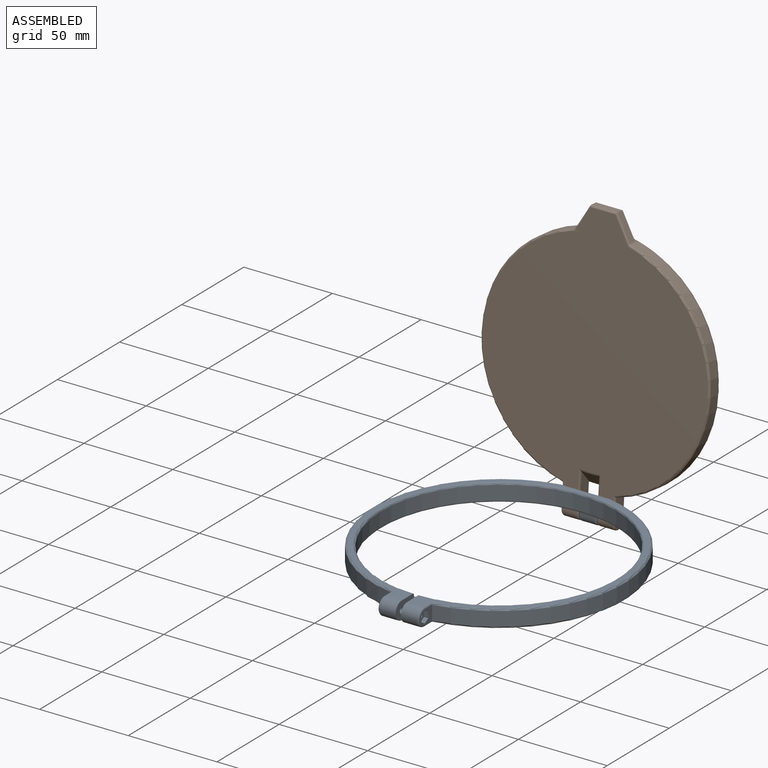
[diagram: assembled view]
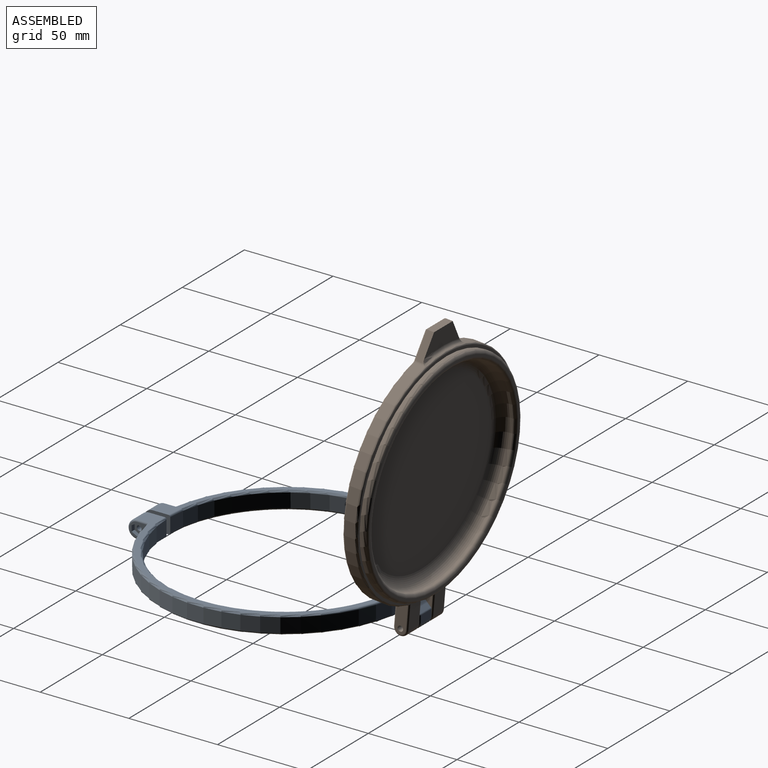
[diagram: assembled view, second angle]
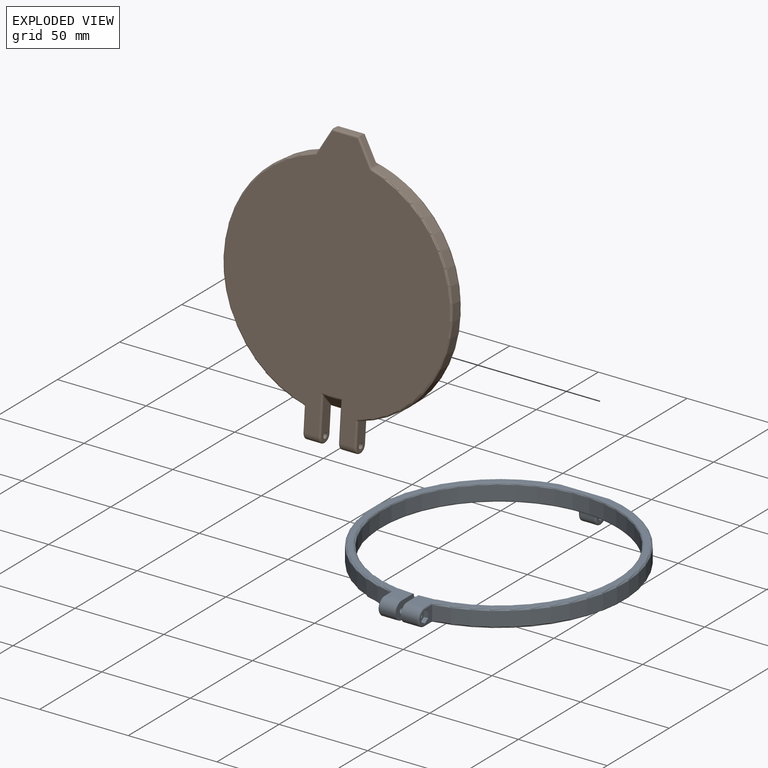
[diagram: exploded view]
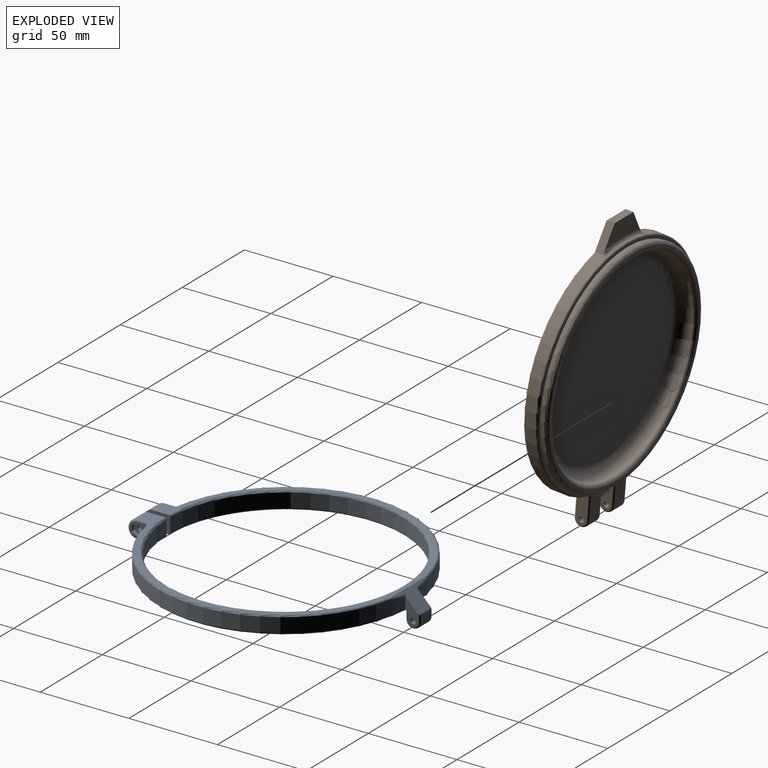
[diagram: exploded view, second angle]
ASSEMBLY  parts=2 mates=2
PART A: 66 faces, bbox 153.9x161x18.9 mm
  f0: plane 4x0.11mm, normal (0,0,1), area 0.1mm2, adj f27,f28,f39
  f1: cylinder r=71.1mm len=141.11mm, axis (0,0,-1), area 1649mm2, adj f10,f23,f48,f59,f61,f64
  f2: cylinder r=1.55mm len=7mm, axis (1,0,0), area 68.2mm2, adj f7,f20
  f3: cylinder r=71.1mm len=141.11mm, axis (0,0,-1), area 1649mm2, adj f9,f22,f44,f52,f54,f62
  f4: cylinder r=66.25mm len=132.5mm, axis (0,0,-1), area 3306.1mm2, adj f7,f8,f50,f51
  f5: plane 147.2x140.2mm, normal (0,0,1), area 1342.7mm2, adj f7,f8,f21,f30,f31,f36,f41,f42
  f6: plane 144.79x140.2mm, normal (0,0,-1), area 1308.3mm2, adj f7,f8,f30,f31,f44,f45,f48,f49
  f7: plane 14.88x10.01mm, normal (-1,0,0), area 130mm2, adj f2,f4,f5,f6,f30,f50,f51
  f8: plane 14.88x10.01mm, normal (1,0,0), area 130mm2, adj f4,f5,f6,f18,f31,f50,f51
  f9: plane 9.94x8mm, normal (-1,0,0), area 45.5mm2, adj f3,f11,f12,f13,f14,f15,f16,f42
  f10: plane 9.94x8mm, normal (1,0,0), area 47.1mm2, adj f1,f19,f46,f47,f49
  f11: plane 2.8x2.4mm, normal (0,0.5,0.87), area 7.8mm2, adj f9,f12,f16,f17
  f12: plane 3.23x2.4mm, normal (0,1,0), area 7.8mm2, adj f9,f11,f13,f17
  f13: plane 2.8x2.4mm, normal (0,0.5,-0.87), area 7.8mm2, adj f9,f12,f14,f17
  f14: plane 2.8x2.4mm, normal (0,-0.5,-0.87), area 7.8mm2, adj f9,f13,f15,f17
  f15: plane 3.23x2.4mm, normal (0,-1,0), area 7.8mm2, adj f9,f14,f16,f17
  f16: plane 2.8x2.4mm, normal (0,-0.5,0.87), area 7.8mm2, adj f9,f11,f15,f17
  f17: plane 6.47x5.6mm, normal (-1,0,0), area 19.6mm2, adj f11,f12,f13,f14,f15,f16,f18
  f18: cylinder r=1.55mm len=7.6mm, axis (1,0,0), area 74mm2, adj f8,f17
  f19: cylinder r=2.85mm len=5.7mm, axis (1,0,0), area 53.7mm2, adj f10,f20
  f20: plane 5.7x5.7mm, normal (1,0,0), area 18mm2, adj f2,f19
  f21: cylinder r=71.1mm len=7.89mm, axis (0,0,-1), area 32.4mm2, adj f5,f27,f36,f41
  f22: plane 13.86x7.18mm, normal (-1,0,0), area 53.7mm2, adj f3,f26,f37,f38,f39,f40,f41,f54
  f23: plane 13.86x7.18mm, normal (1,0,0), area 53.7mm2, adj f1,f26,f32,f33,f34,f35,f36,f61
  f24: plane 8x3.69mm, normal (0,1,0), area 29.5mm2, adj f28,f32,f37,f58
  f25: plane 4x0.11mm, normal (0,0,1), area 0.1mm2, adj f27,f28,f34
  f26: cylinder r=1.55mm len=10mm, axis (-1,0,0), area 97.4mm2, adj f22,f23
  f27: torus R=75.1mm, axis (0,0,1), area 49.6mm2, adj f0,f21,f25,f35,f40
  f28: cylinder r=4mm len=8mm, axis (1,0,0), area 50.3mm2, adj f0,f24,f25,f33,f38
  f29: plane 28.02x9.41mm, normal (0,0.71,-0.71), area 128.4mm2, adj f52,f54,f55,f58,f59,f61
  f30: cylinder r=5mm len=10mm, axis (-1,0,0), area 141.4mm2, adj f5,f6,f7,f47
  f31: cylinder r=5mm len=10mm, axis (-1,0,0), area 141.4mm2, adj f5,f6,f8,f43
  f32: cylinder r=1mm len=3.69mm, axis (0,0,-1), area 5.8mm2, adj f23,f24,f33,f60
  f33: torus R=3mm, axis (1,0,0), area 9mm2, adj f23,f28,f32,f34
  f34: cylinder r=1mm len=1mm, axis (0,-1,0), area 0.2mm2, adj f23,f25,f33,f35
  f35: bspline ~4.96x4.91mm, area 9.2mm2, adj f23,f27,f34,f36
  f36: cylinder r=1mm len=5.1mm, axis (0,0,-1), area 7.2mm2, adj f5,f21,f23,f35,f65
  f37: cylinder r=1mm len=3.69mm, axis (0,0,-1), area 5.8mm2, adj f22,f24,f38,f56
  f38: torus R=3mm, axis (-1,0,0), area 9mm2, adj f22,f28,f37,f39
  f39: cylinder r=1mm len=1mm, axis (0,1,0), area 0.2mm2, adj f0,f22,f38,f40
  f40: bspline ~4.96x4.91mm, area 9.2mm2, adj f22,f27,f39,f41
  f41: cylinder r=1mm len=5.1mm, axis (0,0,-1), area 7.2mm2, adj f5,f21,f22,f40,f63
  f42: cylinder r=1mm len=6.79mm, axis (0,-1,0), area 10mm2, adj f5,f9,f43,f62
  f43: torus R=4mm, axis (1,0,0), area 22.9mm2, adj f9,f31,f42,f45
  f44: torus R=70.1mm, axis (0,0,1), area 309.3mm2, adj f3,f6,f45,f53
  f45: cylinder r=1mm len=6.79mm, axis (0,1,0), area 10mm2, adj f6,f9,f43,f44
  f46: cylinder r=1mm len=6.79mm, axis (0,1,0), area 10mm2, adj f5,f10,f47,f64
  f47: torus R=4mm, axis (1,0,0), area 22.9mm2, adj f10,f30,f46,f49
  f48: torus R=70.1mm, axis (0,0,1), area 309.3mm2, adj f1,f6,f49,f57
  f49: cylinder r=1mm len=6.79mm, axis (0,-1,0), area 10mm2, adj f6,f10,f47,f48
  f50: torus R=67.25mm, axis (0,0,1), area 652.7mm2, adj f4,f6,f7,f8
  f51: torus R=67.25mm, axis (0,0,1), area 652.7mm2, adj f4,f5,f7,f8
  f52: bspline ~10.21x2.01mm, area 7.9mm2, adj f3,f29,f53,f54
  f53: sphere r=1mm, area 0.1mm2, adj f44,f52,f55
  f54: cylinder r=1mm len=8.82mm, axis (0,-0.71,-0.71), area 17mm2, adj f3,f22,f29,f52,f56
  f55: cylinder r=1mm len=28.02mm, axis (-1,0,0), area 22mm2, adj f6,f29,f53,f57
  f56: sphere r=1mm, area 0.8mm2, adj f37,f54,f58
  f57: sphere r=1mm, area 0.1mm2, adj f48,f55,f59
  f58: cylinder r=1mm len=8mm, axis (-1,0,0), area 6.3mm2, adj f24,f29,f56,f60
  f59: bspline ~10.21x2.01mm, area 7.9mm2, adj f1,f29,f57,f61
  f60: sphere r=1mm, area 1mm2, adj f32,f58,f61
  f61: cylinder r=1mm len=8.82mm, axis (0,0.71,0.71), area 17mm2, adj f1,f23,f29,f59,f60
  f62: torus R=70.1mm, axis (0,0,1), area 324.6mm2, adj f3,f5,f42,f63
  f63: cylinder r=1mm len=2mm, axis (0,1,0), area 1.6mm2, adj f5,f22,f41,f62
  f64: torus R=70.1mm, axis (0,0,1), area 324.6mm2, adj f1,f5,f46,f65
  f65: cylinder r=1mm len=2mm, axis (0,-1,0), area 1.6mm2, adj f5,f23,f36,f64
PART B: 48 faces, bbox 139.7x156.9x15.4 mm
  f0: cylinder r=64.5mm len=125.13mm, axis (0,0,-1), area 1025.9mm2, adj f13,f29,f37,f43
  f1: cylinder r=64.5mm len=125.13mm, axis (0,0,-1), area 1025.9mm2, adj f12,f34,f37,f41
  f2: plane 139.5x127mm, normal (0,0,1), area 728.6mm2, adj f4,f17,f18,f24,f27,f35,f37,f39
  f3: plane 151.5x127mm, normal (0,0,-1), area 13030.6mm2, adj f17,f18,f20,f21,f23,f28,f29,f30
  f4: cylinder r=62.15mm len=124.3mm, axis (0,0,-1), area 781mm2, adj f2,f26,f46
  f5: plane 120.3x120.3mm, normal (0,0,1), area 374.8mm2, adj f45,f46
  f6: plane 100.3x100.3mm, normal (0,0,1), area 7901.2mm2, adj f47
  f7: plane 13.23x7.67mm, normal (-0.87,0.5,0), area 61.1mm2, adj f8,f10,f28,f42,f43
  f8: plane 15x4mm, normal (0,1,0), area 60mm2, adj f7,f9,f10,f30
  f9: plane 13.23x7.67mm, normal (0.87,0.5,0), area 61.1mm2, adj f8,f10,f32,f41,f42
  f10: plane 28.31x11.52mm, normal (0,0,1), area 220.7mm2, adj f7,f8,f9,f42
  f11: plane 23.76x6.03mm, normal (-1,0,0), area 112.9mm2, adj f16,f19,f20,f22,f24
  f12: plane 16.27x6mm, normal (1,0,0), area 86.2mm2, adj f1,f16,f36,f38,f39
  f13: plane 16.27x6mm, normal (-1,0,0), area 86.2mm2, adj f0,f15,f31,f33,f35
  f14: plane 23.76x6.03mm, normal (1,0,0), area 112.9mm2, adj f15,f19,f23,f25,f27
  f15: cylinder r=1.55mm len=9.95mm, axis (1,0,0), area 96.9mm2, adj f13,f14
  f16: cylinder r=1.55mm len=9.95mm, axis (1,0,0), area 96.9mm2, adj f11,f12
  f17: cylinder r=4mm len=8mm, axis (-1,0,0), area 99.9mm2, adj f2,f3,f22,f38
  f18: cylinder r=4mm len=8mm, axis (-1,0,0), area 99.9mm2, adj f2,f3,f25,f33
  f19: cone r=64.5mm half-angle=45deg, axis (0,0,1), area 101.4mm2, adj f11,f14,f20,f21,f23,f24,f26,f27
  f20: cylinder r=1mm len=22.25mm, axis (0,1,0), area 33.7mm2, adj f3,f11,f19,f21,f22
  f21: torus R=54.09mm, axis (0,0,1), area 9mm2, adj f3,f19,f20,f23
  f22: torus R=3mm, axis (1,0,0), area 17.9mm2, adj f11,f17,f20,f24
  f23: cylinder r=1mm len=22.25mm, axis (0,-1,0), area 33.7mm2, adj f3,f14,f19,f21,f25
  f24: cylinder r=1mm len=14.71mm, axis (0,-1,0), area 22.5mm2, adj f2,f11,f19,f22,f26
  f25: torus R=3mm, axis (1,0,0), area 17.9mm2, adj f14,f18,f23,f27
  f26: torus R=61.15mm, axis (0,0,1), area 7.7mm2, adj f4,f19,f24,f27
  f27: cylinder r=1mm len=14.71mm, axis (0,1,0), area 22.5mm2, adj f2,f14,f19,f25,f26
  f28: cylinder r=1mm len=14.77mm, axis (-0.5,-0.87,0), area 24.4mm2, adj f3,f7,f30,f44
  f29: torus R=63.5mm, axis (0,0,1), area 268.7mm2, adj f0,f3,f31,f44
  f30: cylinder r=1mm len=15mm, axis (-1,0,0), area 22.7mm2, adj f3,f8,f28,f32
  f31: cylinder r=1mm len=14.06mm, axis (0,1,0), area 21.5mm2, adj f3,f13,f29,f33
  f32: cylinder r=1mm len=14.77mm, axis (-0.5,0.87,0), area 24.4mm2, adj f3,f9,f30,f40
  f33: torus R=3mm, axis (-1,0,0), area 17.9mm2, adj f13,f18,f31,f35
  f34: torus R=63.5mm, axis (0,0,1), area 268.7mm2, adj f1,f3,f36,f40
  f35: cylinder r=1mm len=14.06mm, axis (0,-1,0), area 21.5mm2, adj f2,f13,f33,f37
  f36: cylinder r=1mm len=14.06mm, axis (0,-1,0), area 21.5mm2, adj f3,f12,f34,f38
  f37: torus R=63.5mm, axis (0,0,1), area 587mm2, adj f0,f1,f2,f35,f39,f42
  f38: torus R=3mm, axis (-1,0,0), area 17.9mm2, adj f12,f17,f36,f39
  f39: cylinder r=1mm len=14.06mm, axis (0,1,0), area 21.5mm2, adj f2,f12,f37,f38
  f40: bspline ~1.6x1.46mm, area 1mm2, adj f32,f34,f41
  f41: cylinder r=2mm len=6mm, axis (0,0,-1), area 8.4mm2, adj f1,f9,f40,f42
  f42: torus R=66.5mm, axis (0,0,-1), area 96.2mm2, adj f7,f9,f10,f37,f41,f43
  f43: cylinder r=2mm len=6mm, axis (0,0,-1), area 8.4mm2, adj f0,f7,f42,f44
  f44: bspline ~1.6x1.46mm, area 1mm2, adj f28,f29,f43
  f45: torus R=59.15mm, axis (0,0,1), area 1142.4mm2, adj f5,f47
  f46: torus R=60.15mm, axis (0,0,1), area 1212.4mm2, adj f4,f5
  f47: torus R=50.15mm, axis (0,0,1), area 3772.6mm2, adj f6,f45
PLACE A rot(axis=(0,1,0),180deg) t=(96.98,-18.64,-45.74)mm
PLACE B rot(axis=(0,0.74,0.68),180deg) t=(97.03,58.89,16.48)mm
MATE planar A.f23 <-> B.f11  axis (-1,0,0) through (91.98,55.71,-56.37)mm
MATE cylindrical B.f18 <-> A.f26  axis (-1,0,0) through (107.06,56.51,-59.59)mm
